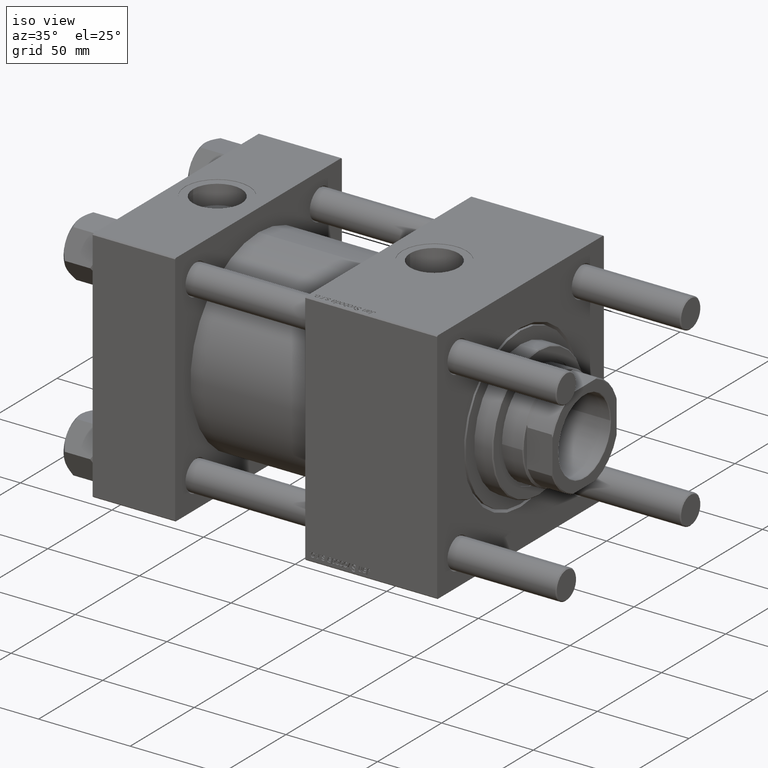
[diagram: clean part render]
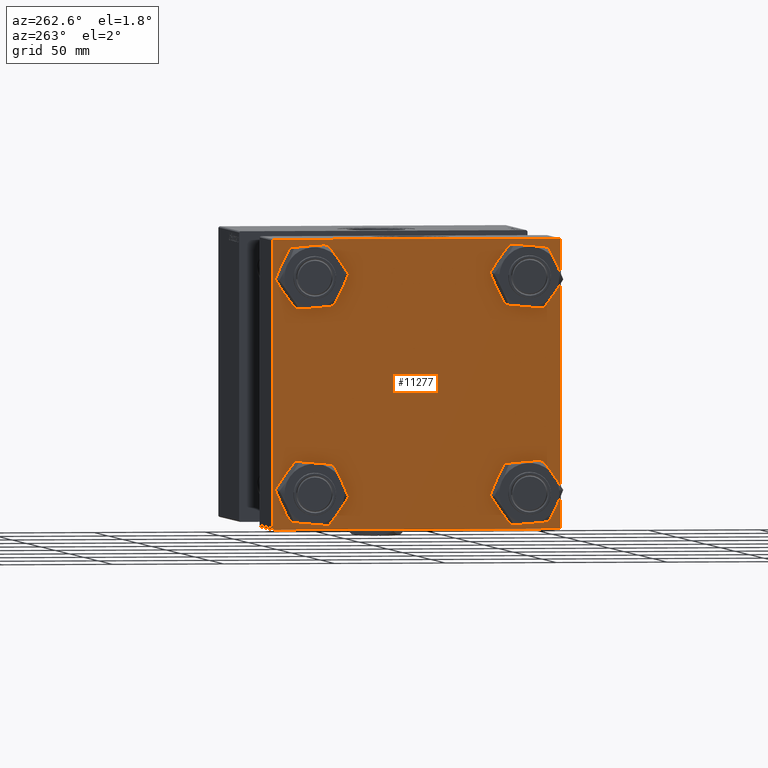
[diagram: tour spotlight — one face highlighted and labeled with its STEP entity id]
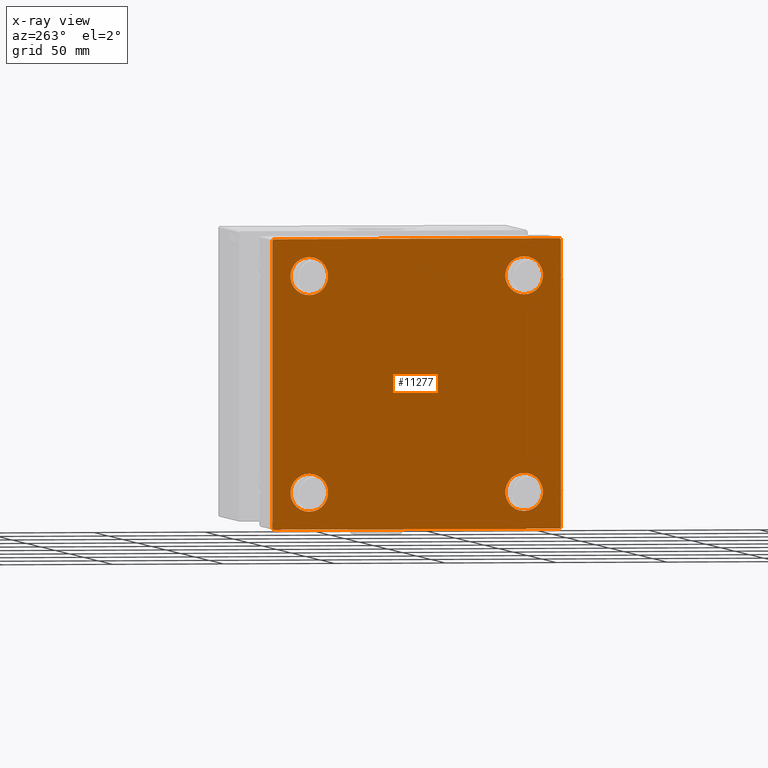
[diagram: x-ray of the same camera — body ghosted, this tour face saturated]
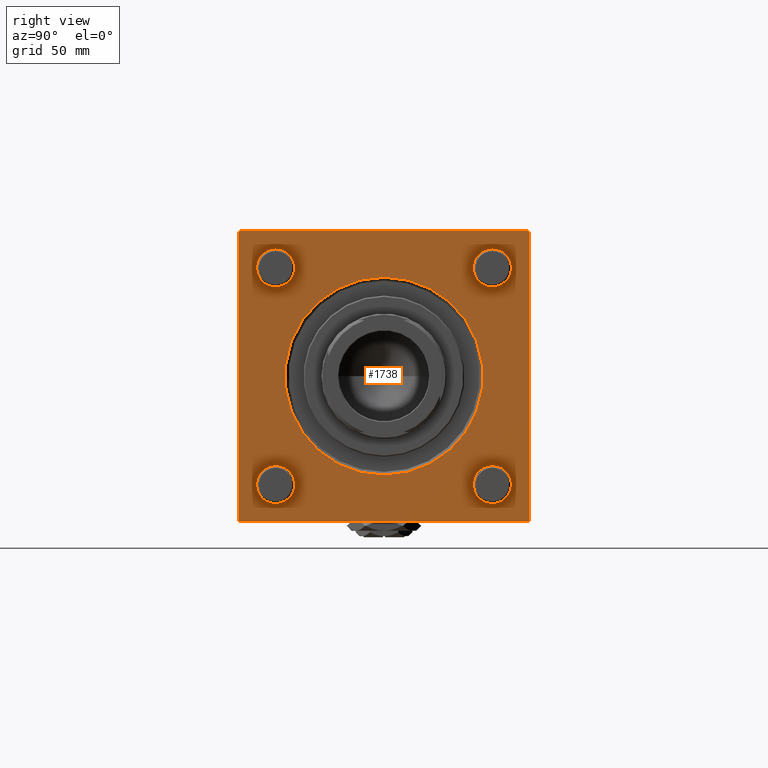
[diagram: tour spotlight — one face highlighted and labeled with its STEP entity id]
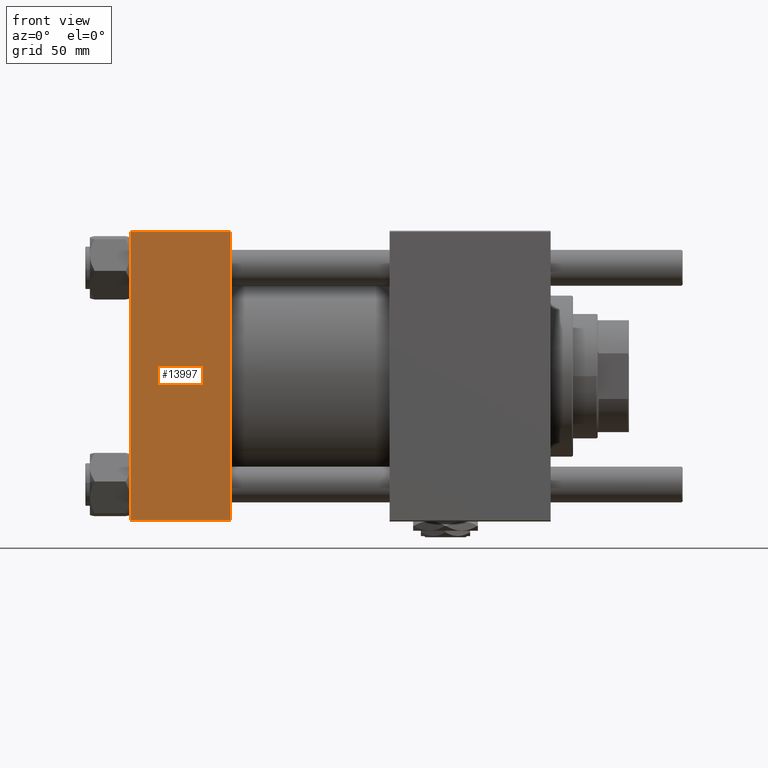
[diagram: tour spotlight — one face highlighted and labeled with its STEP entity id]
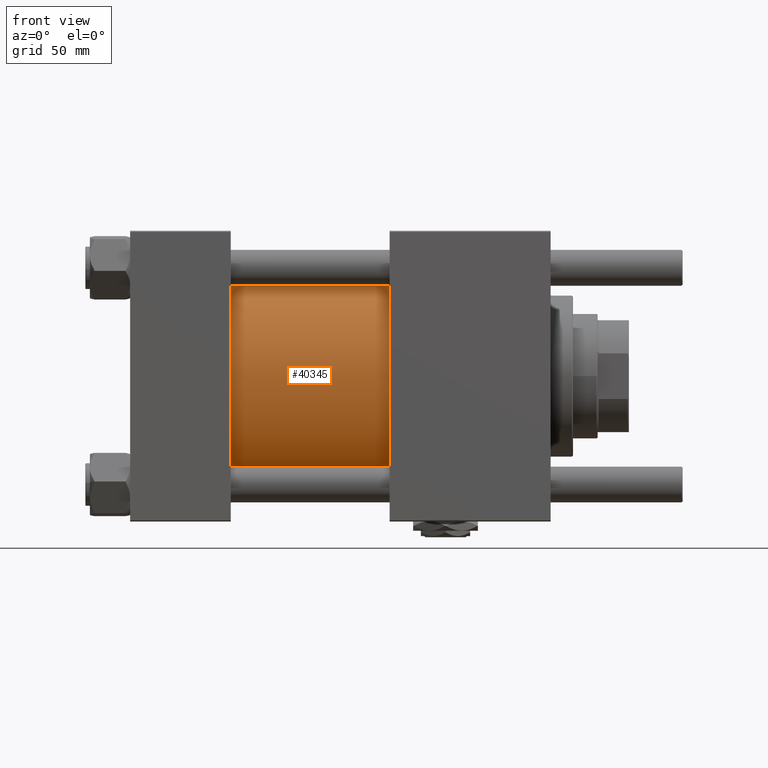
[diagram: tour spotlight — one face highlighted and labeled with its STEP entity id]
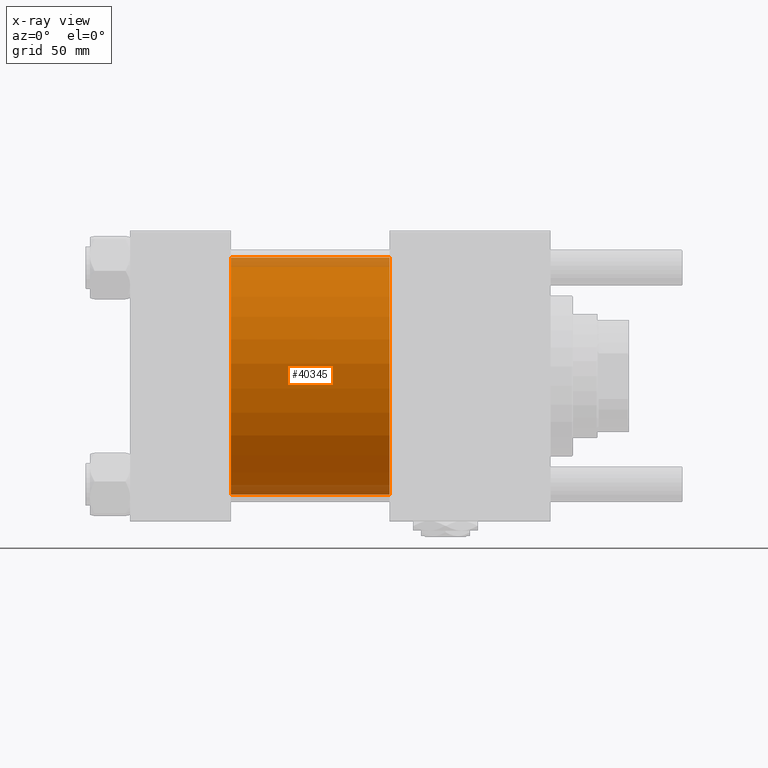
[diagram: x-ray of the same camera — body ghosted, this tour face saturated]
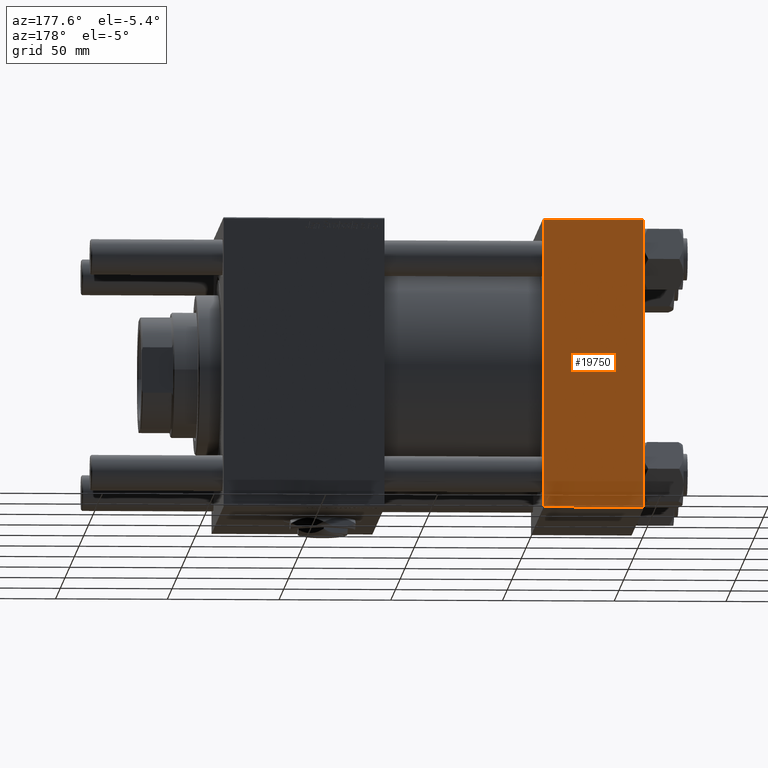
[diagram: tour spotlight — one face highlighted and labeled with its STEP entity id]
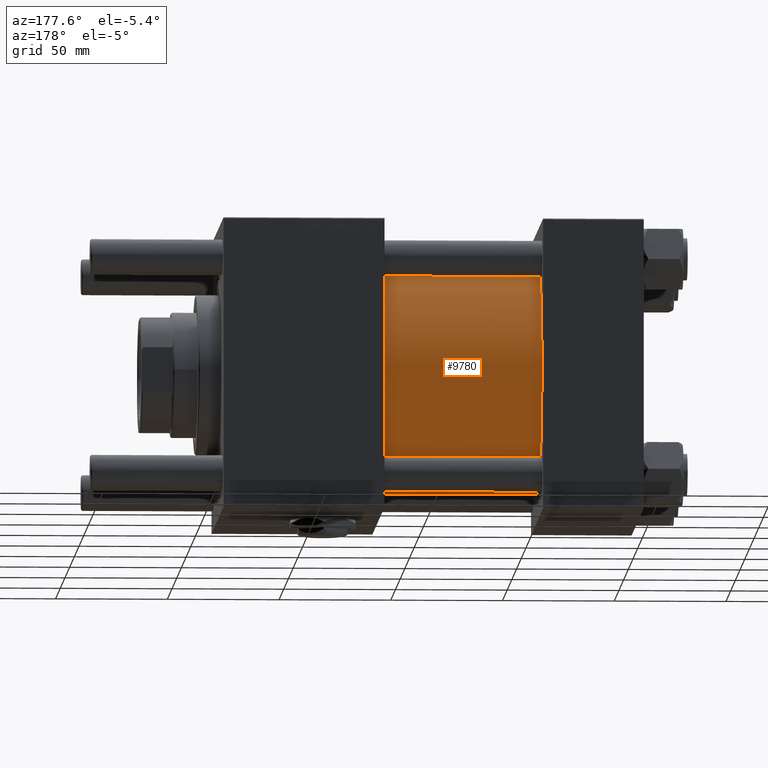
[diagram: tour spotlight — one face highlighted and labeled with its STEP entity id]
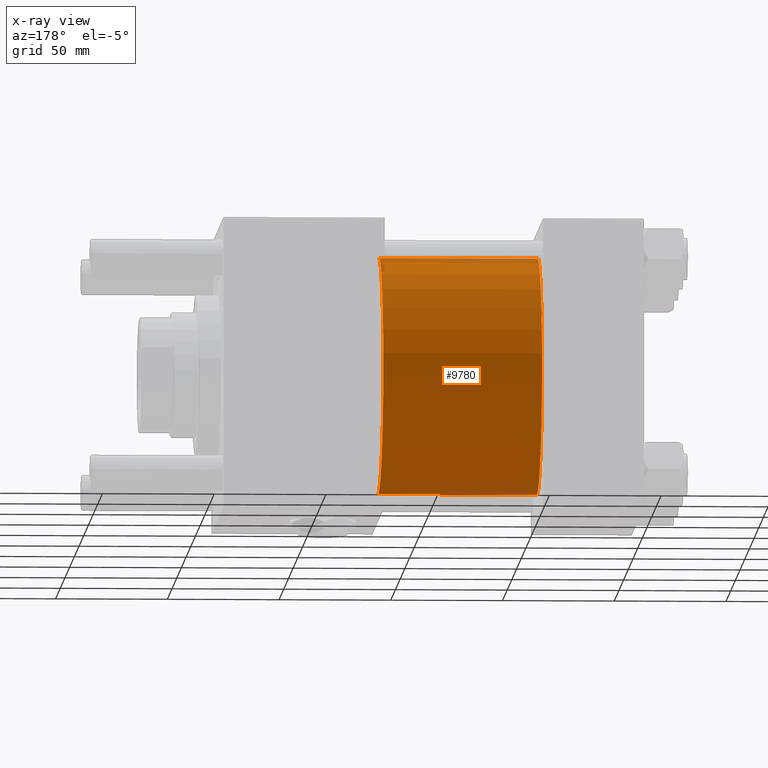
[diagram: x-ray of the same camera — body ghosted, this tour face saturated]
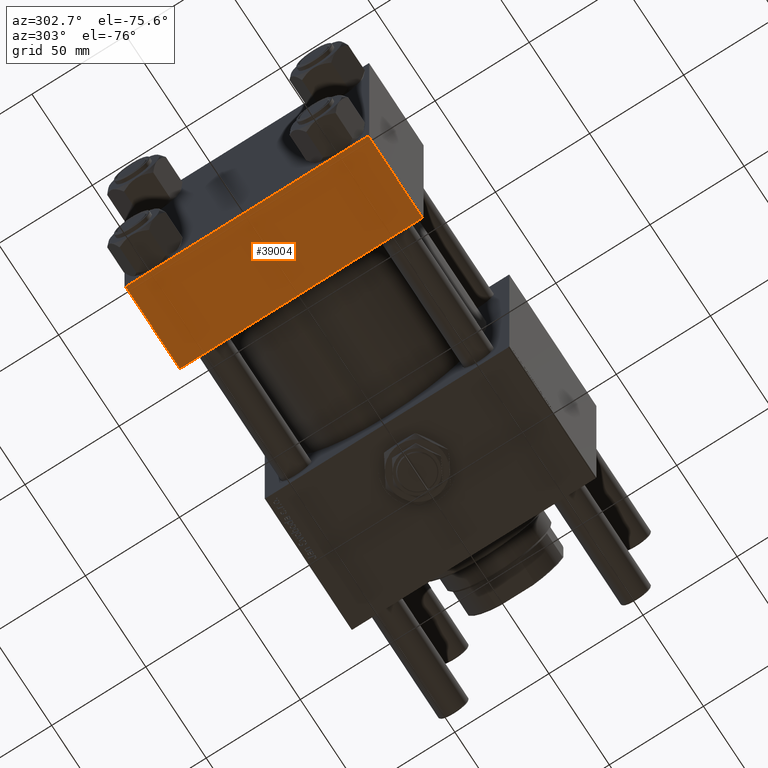
[diagram: tour spotlight — one face highlighted and labeled with its STEP entity id]
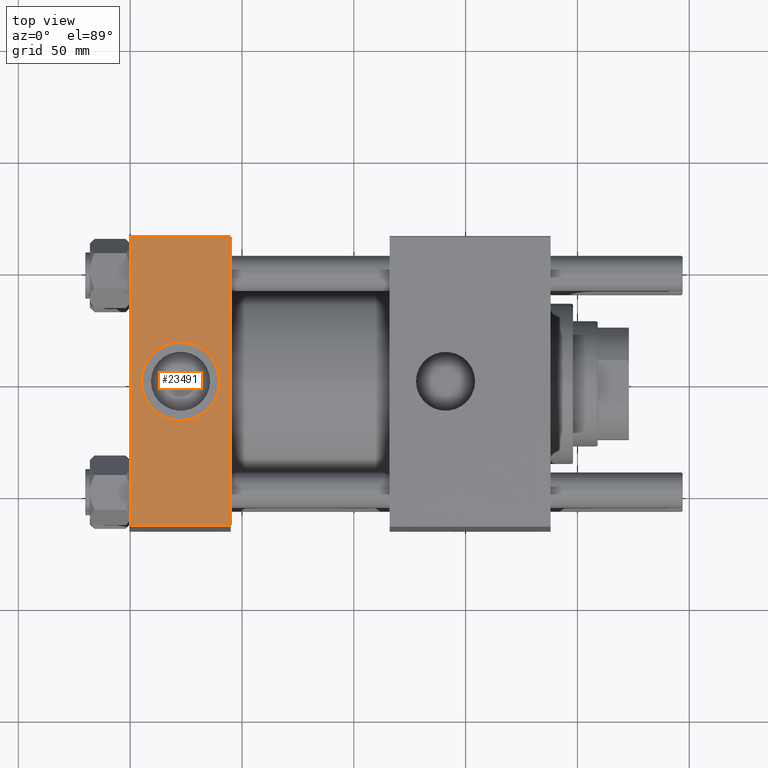
[diagram: tour spotlight — one face highlighted and labeled with its STEP entity id]
A machine part: a face-by-face anatomy tour. The part has 1253 B-rep faces; the first image is the clean iso view, then the 8 largest visible faces are spotlighted one at a time (largest first), each with its STEP entity span.

Face 1 — auxiliary view, entity #11277. An x-ray twin of the same camera follows (body ghosted, this face saturated) — the face is partly hidden behind the body. In plain terms, the highlighted planar face has unit normal (-1, 0, 0).
Definition (entity closure, byte-faithful):
#258 = VERTEX_POINT ( 'NONE', #40661 ) ;
#578 = ORIENTED_EDGE ( 'NONE', *, *, #11005, .T. ) ;
#845 = ORIENTED_EDGE ( 'NONE', *, *, #52996, .F. ) ;
#1016 = VERTEX_POINT ( 'NONE', #8082 ) ;
#1279 = LINE ( 'NONE', #41822, #50370 ) ;
#1327 = EDGE_LOOP ( 'NONE', ( #48896, #3605, #578, #54545, #18184, #44400, #845, #40763 ) ) ;
#1497 = DIRECTION ( 'NONE',  ( 1.000000000000000000, -0.000000000000000000, 0.000000000000000000 ) ) ;
#1869 = CARTESIAN_POINT ( 'NONE',  ( 0.000000000000000000, -48.44999999999999574, -48.45000000000003126 ) ) ;
#2146 = EDGE_LOOP ( 'NONE', ( #10409, #26181 ) ) ;
#2192 = EDGE_CURVE ( 'NONE', #13509, #55642, #58301, .T. ) ;
#2358 = VECTOR ( 'NONE', #39651, 1000.000000000000000 ) ;
#2867 = FACE_BOUND ( 'NONE', #8102, .T. ) ;
#2958 = CARTESIAN_POINT ( 'NONE',  ( 0.000000000000000000, -48.44999999999999574, 48.45000000000003126 ) ) ;
#3605 = ORIENTED_EDGE ( 'NONE', *, *, #46556, .T. ) ;
#4401 = ORIENTED_EDGE ( 'NONE', *, *, #4444, .T. ) ;
#4444 = EDGE_CURVE ( 'NONE', #7871, #34806, #29815, .T. ) ;
#4512 = CIRCLE ( 'NONE', #37796, 8.500000000000007105 ) ;
#4629 = CIRCLE ( 'NONE', #37927, 8.500000000000007105 ) ;
#4896 = CARTESIAN_POINT ( 'NONE',  ( 0.000000000000000000, 48.45000000000000995, -39.95000000000000284 ) ) ;
#5135 = DIRECTION ( 'NONE',  ( 0.000000000000000000, 0.000000000000000000, -1.000000000000000000 ) ) ;
#5837 = LINE ( 'NONE', #24018, #47184 ) ;
#6037 = CARTESIAN_POINT ( 'NONE',  ( 0.000000000000000000, -64.49999999999997158, 65.00000000000000000 ) ) ;
#6269 = DIRECTION ( 'NONE',  ( 0.000000000000000000, 0.000000000000000000, 1.000000000000000000 ) ) ;
#6754 = FACE_BOUND ( 'NONE', #51680, .T. ) ;
#6774 = CIRCLE ( 'NONE', #40096, 8.500000000000007105 ) ;
#6880 = AXIS2_PLACEMENT_3D ( 'NONE', #2958, #56638, #29796 ) ;
#7192 = VECTOR ( 'NONE', #5135, 1000.000000000000000 ) ;
#7866 = VERTEX_POINT ( 'NONE', #8653 ) ;
#7871 = VERTEX_POINT ( 'NONE', #58751 ) ;
#8082 = CARTESIAN_POINT ( 'NONE',  ( 0.000000000000000000, -64.49999999999994316, -65.00000000000000000 ) ) ;
#8102 = EDGE_LOOP ( 'NONE', ( #52425, #29509 ) ) ;
#8118 = CARTESIAN_POINT ( 'NONE',  ( 0.000000000000000000, 65.00000000000000000, -64.49999999999995737 ) ) ;
#8653 = CARTESIAN_POINT ( 'NONE',  ( 0.000000000000000000, 48.45000000000000995, -56.95000000000002416 ) ) ;
#9387 = DIRECTION ( 'NONE',  ( -0.000000000000000000, -0.7071067811865474617, -0.7071067811865474617 ) ) ;
#9545 = CARTESIAN_POINT ( 'NONE',  ( 0.000000000000000000, 65.00000000000000000, 64.49999999999998579 ) ) ;
#9582 = VECTOR ( 'NONE', #42859, 1000.000000000000000 ) ;
#9617 = CARTESIAN_POINT ( 'NONE',  ( 0.000000000000000000, 65.00000000000000000, 65.00000000000001421 ) ) ;
#10409 = ORIENTED_EDGE ( 'NONE', *, *, #2192, .T. ) ;
#10676 = CARTESIAN_POINT ( 'NONE',  ( 0.000000000000000000, -65.00000000000000000, 65.00000000000000000 ) ) ;
#11005 = EDGE_CURVE ( 'NONE', #56979, #1016, #21240, .T. ) ;
#11277 = ADVANCED_FACE ( 'NONE', ( #43711, #6754, #57741, #2867, #20760 ), #53247, .T. ) ;
#11336 = VERTEX_POINT ( 'NONE', #48181 ) ;
#11527 = DIRECTION ( 'NONE',  ( -1.000000000000000000, 0.000000000000000000, -0.000000000000000000 ) ) ;
#11677 = CARTESIAN_POINT ( 'NONE',  ( 0.000000000000000000, 48.45000000000000995, -48.45000000000001705 ) ) ;
#12217 = DIRECTION ( 'NONE',  ( 0.000000000000000000, 0.000000000000000000, 1.000000000000000000 ) ) ;
#12242 = LINE ( 'NONE', #53074, #2358 ) ;
#12503 = ORIENTED_EDGE ( 'NONE', *, *, #17970, .T. ) ;
#13005 = CARTESIAN_POINT ( 'NONE',  ( 0.000000000000000000, 48.45000000000000995, -48.45000000000001705 ) ) ;
#13449 = CARTESIAN_POINT ( 'NONE',  ( 0.000000000000000000, -48.44999999999999574, 56.95000000000003837 ) ) ;
#13509 = VERTEX_POINT ( 'NONE', #13449 ) ;
#14400 = DIRECTION ( 'NONE',  ( 1.000000000000000000, -0.000000000000000000, 0.000000000000000000 ) ) ;
#14857 = AXIS2_PLACEMENT_3D ( 'NONE', #13005, #26994, #31463 ) ;
#15798 = LINE ( 'NONE', #24450, #32834 ) ;
#16774 = DIRECTION ( 'NONE',  ( 0.000000000000000000, -1.000000000000000000, -1.067522139062650425E-16 ) ) ;
#17970 = EDGE_CURVE ( 'NONE', #57527, #7866, #49170, .T. ) ;
#18184 = ORIENTED_EDGE ( 'NONE', *, *, #23657, .F. ) ;
#19162 = DIRECTION ( 'NONE',  ( 0.000000000000000000, -1.000000000000000000, -1.067522139062650425E-16 ) ) ;
#20760 = FACE_OUTER_BOUND ( 'NONE', #1327, .T. ) ;
#21240 = LINE ( 'NONE', #39410, #28137 ) ;
#22326 = CARTESIAN_POINT ( 'NONE',  ( 0.000000000000000000, -48.44999999999999574, 48.45000000000003126 ) ) ;
#23246 = ORIENTED_EDGE ( 'NONE', *, *, #58005, .T. ) ;
#23657 = EDGE_CURVE ( 'NONE', #51339, #39627, #38370, .T. ) ;
#24018 = CARTESIAN_POINT ( 'NONE',  ( 0.000000000000000000, -64.75000000000176215, -64.74999999999816680 ) ) ;
#24450 = CARTESIAN_POINT ( 'NONE',  ( 0.000000000000000000, 64.74999999999998579, 64.74999999999998579 ) ) ;
#26027 = AXIS2_PLACEMENT_3D ( 'NONE', #1869, #14400, #42107 ) ;
#26124 = EDGE_CURVE ( 'NONE', #11336, #48491, #6774, .T. ) ;
#26181 = ORIENTED_EDGE ( 'NONE', *, *, #48172, .T. ) ;
#26872 = VERTEX_POINT ( 'NONE', #8118 ) ;
#26994 = DIRECTION ( 'NONE',  ( 1.000000000000000000, -0.000000000000000000, 0.000000000000000000 ) ) ;
#28137 = VECTOR ( 'NONE', #16774, 1000.000000000000000 ) ;
#28410 = DIRECTION ( 'NONE',  ( 1.000000000000000000, -0.000000000000000000, 0.000000000000000000 ) ) ;
#29509 = ORIENTED_EDGE ( 'NONE', *, *, #52101, .T. ) ;
#29758 = CARTESIAN_POINT ( 'NONE',  ( 0.000000000000000000, -65.00000000000000000, -64.49999999999991473 ) ) ;
#29796 = DIRECTION ( 'NONE',  ( 0.000000000000000000, 0.000000000000000000, 1.000000000000000000 ) ) ;
#29815 = CIRCLE ( 'NONE', #26027, 8.500000000000007105 ) ;
#31463 = DIRECTION ( 'NONE',  ( 0.000000000000000000, 0.000000000000000000, 1.000000000000000000 ) ) ;
#31523 = DIRECTION ( 'NONE',  ( 1.000000000000000000, -0.000000000000000000, 0.000000000000000000 ) ) ;
#32834 = VECTOR ( 'NONE', #51856, 1000.000000000000114 ) ;
#33006 = AXIS2_PLACEMENT_3D ( 'NONE', #11677, #56998, #57288 ) ;
#33670 = CARTESIAN_POINT ( 'NONE',  ( 0.000000000000000000, 48.45000000000000995, 48.45000000000001705 ) ) ;
#34759 = CARTESIAN_POINT ( 'NONE',  ( 0.000000000000000000, 0.000000000000000000, 0.000000000000000000 ) ) ;
#34806 = VERTEX_POINT ( 'NONE', #51747 ) ;
#35526 = EDGE_LOOP ( 'NONE', ( #12503, #54134 ) ) ;
#36916 = EDGE_CURVE ( 'NONE', #258, #51135, #15798, .T. ) ;
#37796 = AXIS2_PLACEMENT_3D ( 'NONE', #22326, #53930, #12217 ) ;
#37826 = CARTESIAN_POINT ( 'NONE',  ( 0.000000000000000000, -65.00000000000000000, 64.50000000000000000 ) ) ;
#37927 = AXIS2_PLACEMENT_3D ( 'NONE', #33670, #1497, #6269 ) ;
#38307 = DIRECTION ( 'NONE',  ( 0.000000000000000000, -0.7071067811865279218, 0.7071067811865671127 ) ) ;
#38370 = LINE ( 'NONE', #10676, #9582 ) ;
#38607 = CIRCLE ( 'NONE', #55769, 8.500000000000007105 ) ;
#39043 = EDGE_CURVE ( 'NONE', #1016, #39627, #5837, .T. ) ;
#39283 = CARTESIAN_POINT ( 'NONE',  ( 0.000000000000000000, 64.49999999999997158, -64.99999999999998579 ) ) ;
#39410 = CARTESIAN_POINT ( 'NONE',  ( 0.000000000000000000, 65.00000000000000000, -64.99999999999998579 ) ) ;
#39627 = VERTEX_POINT ( 'NONE', #29758 ) ;
#39651 = DIRECTION ( 'NONE',  ( -0.000000000000000000, 0.7071067811865672237, 0.7071067811865279218 ) ) ;
#40096 = AXIS2_PLACEMENT_3D ( 'NONE', #41818, #28410, #50186 ) ;
#40186 = DIRECTION ( 'NONE',  ( 0.000000000000000000, 0.000000000000000000, 1.000000000000000000 ) ) ;
#40661 = CARTESIAN_POINT ( 'NONE',  ( 0.000000000000000000, 64.49999999999997158, 65.00000000000001421 ) ) ;
#40763 = ORIENTED_EDGE ( 'NONE', *, *, #36916, .T. ) ;
#40769 = CARTESIAN_POINT ( 'NONE',  ( 0.000000000000000000, -48.44999999999999574, -48.45000000000003126 ) ) ;
#41567 = LINE ( 'NONE', #51102, #41605 ) ;
#41605 = VECTOR ( 'NONE', #9387, 1000.000000000000114 ) ;
#41818 = CARTESIAN_POINT ( 'NONE',  ( 0.000000000000000000, 48.45000000000000995, 48.45000000000001705 ) ) ;
#41822 = CARTESIAN_POINT ( 'NONE',  ( 0.000000000000000000, 65.00000000000000000, 65.00000000000001421 ) ) ;
#42107 = DIRECTION ( 'NONE',  ( 0.000000000000000000, 0.000000000000000000, 1.000000000000000000 ) ) ;
#42379 = EDGE_CURVE ( 'NONE', #51135, #26872, #50171, .T. ) ;
#42859 = DIRECTION ( 'NONE',  ( 0.000000000000000000, 0.000000000000000000, -1.000000000000000000 ) ) ;
#43541 = CIRCLE ( 'NONE', #33006, 8.500000000000007105 ) ;
#43711 = FACE_BOUND ( 'NONE', #2146, .T. ) ;
#44400 = ORIENTED_EDGE ( 'NONE', *, *, #55574, .T. ) ;
#44415 = CARTESIAN_POINT ( 'NONE',  ( 0.000000000000000000, -48.44999999999999574, 39.95000000000001705 ) ) ;
#45246 = AXIS2_PLACEMENT_3D ( 'NONE', #34759, #11527, #52958 ) ;
#46556 = EDGE_CURVE ( 'NONE', #26872, #56979, #41567, .T. ) ;
#46913 = EDGE_CURVE ( 'NONE', #7866, #57527, #43541, .T. ) ;
#47184 = VECTOR ( 'NONE', #38307, 1000.000000000000000 ) ;
#48172 = EDGE_CURVE ( 'NONE', #55642, #13509, #4512, .T. ) ;
#48181 = CARTESIAN_POINT ( 'NONE',  ( 0.000000000000000000, 48.45000000000000995, 56.95000000000002416 ) ) ;
#48491 = VERTEX_POINT ( 'NONE', #56325 ) ;
#48896 = ORIENTED_EDGE ( 'NONE', *, *, #42379, .T. ) ;
#49170 = CIRCLE ( 'NONE', #14857, 8.500000000000007105 ) ;
#50171 = LINE ( 'NONE', #9617, #7192 ) ;
#50186 = DIRECTION ( 'NONE',  ( 0.000000000000000000, 0.000000000000000000, 1.000000000000000000 ) ) ;
#50275 = VERTEX_POINT ( 'NONE', #6037 ) ;
#50370 = VECTOR ( 'NONE', #19162, 1000.000000000000000 ) ;
#51102 = CARTESIAN_POINT ( 'NONE',  ( 0.000000000000000000, 64.74999999999997158, -64.74999999999997158 ) ) ;
#51135 = VERTEX_POINT ( 'NONE', #9545 ) ;
#51339 = VERTEX_POINT ( 'NONE', #37826 ) ;
#51680 = EDGE_LOOP ( 'NONE', ( #23246, #4401 ) ) ;
#51747 = CARTESIAN_POINT ( 'NONE',  ( 0.000000000000000000, -48.44999999999999574, -39.95000000000001705 ) ) ;
#51856 = DIRECTION ( 'NONE',  ( 0.000000000000000000, 0.7071067811865474617, -0.7071067811865474617 ) ) ;
#52101 = EDGE_CURVE ( 'NONE', #48491, #11336, #4629, .T. ) ;
#52425 = ORIENTED_EDGE ( 'NONE', *, *, #26124, .T. ) ;
#52958 = DIRECTION ( 'NONE',  ( -0.000000000000000000, 0.000000000000000000, 1.000000000000000000 ) ) ;
#52996 = EDGE_CURVE ( 'NONE', #258, #50275, #1279, .T. ) ;
#53074 = CARTESIAN_POINT ( 'NONE',  ( -0.000000000000000000, -64.74999999999819522, 64.75000000000179057 ) ) ;
#53247 = PLANE ( 'NONE',  #45246 ) ;
#53930 = DIRECTION ( 'NONE',  ( 1.000000000000000000, -0.000000000000000000, 0.000000000000000000 ) ) ;
#54134 = ORIENTED_EDGE ( 'NONE', *, *, #46913, .T. ) ;
#54545 = ORIENTED_EDGE ( 'NONE', *, *, #39043, .T. ) ;
#55574 = EDGE_CURVE ( 'NONE', #51339, #50275, #12242, .T. ) ;
#55642 = VERTEX_POINT ( 'NONE', #44415 ) ;
#55769 = AXIS2_PLACEMENT_3D ( 'NONE', #40769, #31523, #40186 ) ;
#56325 = CARTESIAN_POINT ( 'NONE',  ( 0.000000000000000000, 48.45000000000000995, 39.95000000000000284 ) ) ;
#56638 = DIRECTION ( 'NONE',  ( 1.000000000000000000, -0.000000000000000000, 0.000000000000000000 ) ) ;
#56979 = VERTEX_POINT ( 'NONE', #39283 ) ;
#56998 = DIRECTION ( 'NONE',  ( 1.000000000000000000, -0.000000000000000000, 0.000000000000000000 ) ) ;
#57288 = DIRECTION ( 'NONE',  ( 0.000000000000000000, 0.000000000000000000, 1.000000000000000000 ) ) ;
#57527 = VERTEX_POINT ( 'NONE', #4896 ) ;
#57741 = FACE_BOUND ( 'NONE', #35526, .T. ) ;
#58005 = EDGE_CURVE ( 'NONE', #34806, #7871, #38607, .T. ) ;
#58301 = CIRCLE ( 'NONE', #6880, 8.500000000000007105 ) ;
#58751 = CARTESIAN_POINT ( 'NONE',  ( 0.000000000000000000, -48.44999999999999574, -56.95000000000003837 ) ) ;

Face 2 — right view, entity #1738. In plain terms, the highlighted planar face has unit normal (-1, 0, 0).
Definition (entity closure, byte-faithful):
#118 = CARTESIAN_POINT ( 'NONE',  ( 188.0000000000000000, 65.00000000000002842, -64.99999999999998579 ) ) ;
#624 = CARTESIAN_POINT ( 'NONE',  ( 188.0000000000000000, -48.44999999999999574, -48.45000000000003126 ) ) ;
#1057 = DIRECTION ( 'NONE',  ( 0.000000000000000000, 0.000000000000000000, 1.000000000000000000 ) ) ;
#1155 = VERTEX_POINT ( 'NONE', #28311 ) ;
#1738 = ADVANCED_FACE ( 'NONE', ( #53253, #57445, #49066, #44304, #35343, #39839 ), #43717, .F. ) ;
#2873 = CARTESIAN_POINT ( 'NONE',  ( 188.0000000000000000, 0.000000000000000000, 0.000000000000000000 ) ) ;
#3342 = CIRCLE ( 'NONE', #39507, 44.24999999999998579 ) ;
#4269 = AXIS2_PLACEMENT_3D ( 'NONE', #7067, #52982, #7953 ) ;
#4339 = AXIS2_PLACEMENT_3D ( 'NONE', #624, #19086, #33090 ) ;
#4365 = VERTEX_POINT ( 'NONE', #40372 ) ;
#4886 = EDGE_LOOP ( 'NONE', ( #7622, #18972 ) ) ;
#5016 = CARTESIAN_POINT ( 'NONE',  ( 188.0000000000000000, -64.99999999999998579, 64.50000000000008527 ) ) ;
#5035 = EDGE_CURVE ( 'NONE', #39728, #19306, #27821, .T. ) ;
#5269 = VECTOR ( 'NONE', #55177, 1000.000000000000000 ) ;
#5565 = EDGE_CURVE ( 'NONE', #30902, #19306, #39055, .T. ) ;
#5984 = LINE ( 'NONE', #23288, #5269 ) ;
#6525 = CARTESIAN_POINT ( 'NONE',  ( 188.0000000000000000, 65.00000000000002842, 65.00000000000001421 ) ) ;
#6909 = CARTESIAN_POINT ( 'NONE',  ( 188.0000000000000000, -64.99999999999998579, 64.50000000000008527 ) ) ;
#7032 = CARTESIAN_POINT ( 'NONE',  ( 188.0000000000000000, -64.50000000000002842, -65.00000000000001421 ) ) ;
#7041 = CARTESIAN_POINT ( 'NONE',  ( 188.0000000000000000, 65.00000000000002842, 64.50000000000001421 ) ) ;
#7067 = CARTESIAN_POINT ( 'NONE',  ( 188.0000000000000000, 48.45000000000000995, 48.45000000000001705 ) ) ;
#7208 = DIRECTION ( 'NONE',  ( -0.000000000000000000, -0.7071067811865376918, -0.7071067811865574537 ) ) ;
#7622 = ORIENTED_EDGE ( 'NONE', *, *, #22277, .T. ) ;
#7953 = DIRECTION ( 'NONE',  ( 0.000000000000000000, 0.000000000000000000, 1.000000000000000000 ) ) ;
#8031 = EDGE_CURVE ( 'NONE', #17888, #33675, #25004, .T. ) ;
#8514 = CARTESIAN_POINT ( 'NONE',  ( 188.0000000000000000, 5.419062086227035828E-15, 44.24999999999998579 ) ) ;
#9097 = ORIENTED_EDGE ( 'NONE', *, *, #45981, .T. ) ;
#9143 = DIRECTION ( 'NONE',  ( 0.000000000000000000, -1.000000000000000000, -1.067522139062650425E-16 ) ) ;
#9505 = EDGE_CURVE ( 'NONE', #30632, #58771, #49034, .T. ) ;
#10442 = CARTESIAN_POINT ( 'NONE',  ( 188.0000000000000000, 0.000000000000000000, -44.24999999999998579 ) ) ;
#10560 = EDGE_CURVE ( 'NONE', #52075, #19434, #3342, .T. ) ;
#10593 = DIRECTION ( 'NONE',  ( -1.000000000000000000, 0.000000000000000000, -0.000000000000000000 ) ) ;
#11033 = CIRCLE ( 'NONE', #49114, 8.499999999999923617 ) ;
#11090 = EDGE_LOOP ( 'NONE', ( #53521, #56399 ) ) ;
#11651 = CARTESIAN_POINT ( 'NONE',  ( 188.0000000000000000, -64.50000000000002842, -65.00000000000001421 ) ) ;
#12179 = VERTEX_POINT ( 'NONE', #43939 ) ;
#12246 = DIRECTION ( 'NONE',  ( 0.000000000000000000, 0.7071067811865279218, -0.7071067811865672237 ) ) ;
#13478 = CARTESIAN_POINT ( 'NONE',  ( 188.0000000000000000, 64.50000000000005684, 65.00000000000001421 ) ) ;
#13606 = CARTESIAN_POINT ( 'NONE',  ( 188.0000000000000000, 65.00000000000002842, 65.00000000000001421 ) ) ;
#13761 = DIRECTION ( 'NONE',  ( 0.000000000000000000, 0.000000000000000000, 1.000000000000000000 ) ) ;
#14546 = DIRECTION ( 'NONE',  ( -1.000000000000000000, 0.000000000000000000, -0.000000000000000000 ) ) ;
#14803 = VECTOR ( 'NONE', #9143, 1000.000000000000000 ) ;
#15171 = CIRCLE ( 'NONE', #48497, 8.499999999999923617 ) ;
#15405 = AXIS2_PLACEMENT_3D ( 'NONE', #37175, #14546, #38069 ) ;
#15863 = LINE ( 'NONE', #6909, #41397 ) ;
#16464 = DIRECTION ( 'NONE',  ( -1.000000000000000000, 0.000000000000000000, -0.000000000000000000 ) ) ;
#16542 = CARTESIAN_POINT ( 'NONE',  ( 188.0000000000000000, 64.50000000000002842, -64.99999999999998579 ) ) ;
#16785 = EDGE_LOOP ( 'NONE', ( #44191, #42636 ) ) ;
#17121 = ORIENTED_EDGE ( 'NONE', *, *, #10560, .T. ) ;
#17888 = VERTEX_POINT ( 'NONE', #7041 ) ;
#18044 = DIRECTION ( 'NONE',  ( -1.000000000000000000, 0.000000000000000000, -0.000000000000000000 ) ) ;
#18234 = CARTESIAN_POINT ( 'NONE',  ( 188.0000000000000000, 48.45000000000000995, -56.94999999999993889 ) ) ;
#18534 = DIRECTION ( 'NONE',  ( 0.000000000000000000, -0.7071067811865279218, 0.7071067811865671127 ) ) ;
#18972 = ORIENTED_EDGE ( 'NONE', *, *, #24220, .T. ) ;
#19086 = DIRECTION ( 'NONE',  ( -1.000000000000000000, 0.000000000000000000, -0.000000000000000000 ) ) ;
#19306 = VERTEX_POINT ( 'NONE', #7032 ) ;
#19410 = LINE ( 'NONE', #13478, #20678 ) ;
#19434 = VERTEX_POINT ( 'NONE', #8514 ) ;
#19487 = EDGE_CURVE ( 'NONE', #19434, #52075, #37881, .T. ) ;
#20621 = EDGE_LOOP ( 'NONE', ( #51037, #47525 ) ) ;
#20678 = VECTOR ( 'NONE', #18534, 1000.000000000000000 ) ;
#21846 = ORIENTED_EDGE ( 'NONE', *, *, #5565, .T. ) ;
#21920 = DIRECTION ( 'NONE',  ( 0.000000000000000000, 0.000000000000000000, 1.000000000000000000 ) ) ;
#22277 = EDGE_CURVE ( 'NONE', #1155, #39521, #56308, .T. ) ;
#22378 = CARTESIAN_POINT ( 'NONE',  ( 188.0000000000000000, -64.99999999999998579, -64.50000000000002842 ) ) ;
#22754 = EDGE_CURVE ( 'NONE', #38264, #28722, #43975, .T. ) ;
#23288 = CARTESIAN_POINT ( 'NONE',  ( 188.0000000000000000, 65.00000000000002842, -64.50000000000001421 ) ) ;
#23317 = CARTESIAN_POINT ( 'NONE',  ( 188.0000000000000000, 48.45000000000000995, 39.95000000000008811 ) ) ;
#23617 = DIRECTION ( 'NONE',  ( -1.000000000000000000, 0.000000000000000000, -0.000000000000000000 ) ) ;
#23623 = CARTESIAN_POINT ( 'NONE',  ( 188.0000000000000000, -48.44999999999999574, -48.45000000000003126 ) ) ;
#24220 = EDGE_CURVE ( 'NONE', #39521, #1155, #49582, .T. ) ;
#24311 = CARTESIAN_POINT ( 'NONE',  ( 188.0000000000000000, 48.45000000000000995, 56.94999999999993889 ) ) ;
#24508 = CARTESIAN_POINT ( 'NONE',  ( 188.0000000000000000, -48.44999999999999574, 48.45000000000003126 ) ) ;
#25004 = LINE ( 'NONE', #6525, #27043 ) ;
#26127 = DIRECTION ( 'NONE',  ( -1.000000000000000000, 0.000000000000000000, -0.000000000000000000 ) ) ;
#27043 = VECTOR ( 'NONE', #56302, 1000.000000000000000 ) ;
#27266 = EDGE_CURVE ( 'NONE', #44100, #30902, #42567, .T. ) ;
#27281 = CARTESIAN_POINT ( 'NONE',  ( 188.0000000000000000, 0.000000000000000000, 0.000000000000000000 ) ) ;
#27821 = LINE ( 'NONE', #118, #30786 ) ;
#28311 = CARTESIAN_POINT ( 'NONE',  ( 188.0000000000000000, -48.44999999999999574, 39.95000000000010232 ) ) ;
#28722 = VERTEX_POINT ( 'NONE', #34961 ) ;
#29558 = ORIENTED_EDGE ( 'NONE', *, *, #37942, .T. ) ;
#30220 = ORIENTED_EDGE ( 'NONE', *, *, #5035, .F. ) ;
#30468 = DIRECTION ( 'NONE',  ( 0.000000000000000000, 0.000000000000000000, 1.000000000000000000 ) ) ;
#30632 = VERTEX_POINT ( 'NONE', #23317 ) ;
#30645 = CARTESIAN_POINT ( 'NONE',  ( 188.0000000000000000, 65.00000000000002842, -64.50000000000001421 ) ) ;
#30786 = VECTOR ( 'NONE', #58579, 1000.000000000000000 ) ;
#30902 = VERTEX_POINT ( 'NONE', #22378 ) ;
#31582 = AXIS2_PLACEMENT_3D ( 'NONE', #39109, #16464, #30468 ) ;
#32559 = EDGE_LOOP ( 'NONE', ( #58053, #21846, #30220, #36469, #54456, #9097, #29558, #47944 ) ) ;
#33026 = CARTESIAN_POINT ( 'NONE',  ( 188.0000000000000000, -64.99999999999998579, 65.00000000000000000 ) ) ;
#33090 = DIRECTION ( 'NONE',  ( 0.000000000000000000, 0.000000000000000000, 1.000000000000000000 ) ) ;
#33238 = CARTESIAN_POINT ( 'NONE',  ( 188.0000000000000000, 0.000000000000000000, 0.000000000000000000 ) ) ;
#33473 = VECTOR ( 'NONE', #47913, 1000.000000000000000 ) ;
#33675 = VERTEX_POINT ( 'NONE', #30645 ) ;
#34766 = DIRECTION ( 'NONE',  ( -0.000000000000000000, 0.000000000000000000, 1.000000000000000000 ) ) ;
#34961 = CARTESIAN_POINT ( 'NONE',  ( 188.0000000000000000, 48.45000000000000995, -39.95000000000008811 ) ) ;
#35200 = CARTESIAN_POINT ( 'NONE',  ( 188.0000000000000000, 64.50000000000005684, 65.00000000000001421 ) ) ;
#35343 = FACE_BOUND ( 'NONE', #52341, .T. ) ;
#36067 = EDGE_CURVE ( 'NONE', #4365, #44100, #15863, .T. ) ;
#36469 = ORIENTED_EDGE ( 'NONE', *, *, #38331, .T. ) ;
#36775 = AXIS2_PLACEMENT_3D ( 'NONE', #54595, #41469, #13761 ) ;
#37108 = LINE ( 'NONE', #13606, #14803 ) ;
#37175 = CARTESIAN_POINT ( 'NONE',  ( 188.0000000000000000, 48.45000000000000995, -48.45000000000001705 ) ) ;
#37881 = CIRCLE ( 'NONE', #41689, 44.24999999999998579 ) ;
#37942 = EDGE_CURVE ( 'NONE', #41505, #4365, #37108, .T. ) ;
#38069 = DIRECTION ( 'NONE',  ( 0.000000000000000000, 0.000000000000000000, 1.000000000000000000 ) ) ;
#38190 = DIRECTION ( 'NONE',  ( 0.000000000000000000, 0.000000000000000000, 1.000000000000000000 ) ) ;
#38264 = VERTEX_POINT ( 'NONE', #18234 ) ;
#38331 = EDGE_CURVE ( 'NONE', #39728, #33675, #5984, .T. ) ;
#39055 = LINE ( 'NONE', #11651, #43210 ) ;
#39109 = CARTESIAN_POINT ( 'NONE',  ( 188.0000000000000000, -48.44999999999999574, 48.45000000000003126 ) ) ;
#39160 = EDGE_CURVE ( 'NONE', #58771, #30632, #11033, .T. ) ;
#39507 = AXIS2_PLACEMENT_3D ( 'NONE', #33238, #10593, #1057 ) ;
#39521 = VERTEX_POINT ( 'NONE', #46743 ) ;
#39728 = VERTEX_POINT ( 'NONE', #16542 ) ;
#39839 = FACE_OUTER_BOUND ( 'NONE', #32559, .T. ) ;
#40372 = CARTESIAN_POINT ( 'NONE',  ( 188.0000000000000000, -64.50000000000008527, 65.00000000000000000 ) ) ;
#40687 = CARTESIAN_POINT ( 'NONE',  ( 188.0000000000000000, -48.44999999999999574, -56.94999999999995310 ) ) ;
#41397 = VECTOR ( 'NONE', #7208, 999.9999999999998863 ) ;
#41469 = DIRECTION ( 'NONE',  ( -1.000000000000000000, 0.000000000000000000, -0.000000000000000000 ) ) ;
#41505 = VERTEX_POINT ( 'NONE', #35200 ) ;
#41689 = AXIS2_PLACEMENT_3D ( 'NONE', #27281, #18044, #54398 ) ;
#42567 = LINE ( 'NONE', #33026, #33473 ) ;
#42636 = ORIENTED_EDGE ( 'NONE', *, *, #39160, .T. ) ;
#42682 = DIRECTION ( 'NONE',  ( 0.000000000000000000, 0.000000000000000000, 1.000000000000000000 ) ) ;
#42685 = ORIENTED_EDGE ( 'NONE', *, *, #19487, .T. ) ;
#42979 = EDGE_CURVE ( 'NONE', #12179, #45531, #43365, .T. ) ;
#43210 = VECTOR ( 'NONE', #12246, 1000.000000000000000 ) ;
#43365 = CIRCLE ( 'NONE', #4339, 8.499999999999923617 ) ;
#43717 = PLANE ( 'NONE',  #52577 ) ;
#43939 = CARTESIAN_POINT ( 'NONE',  ( 188.0000000000000000, -48.44999999999999574, -39.95000000000010232 ) ) ;
#43975 = CIRCLE ( 'NONE', #15405, 8.499999999999923617 ) ;
#44100 = VERTEX_POINT ( 'NONE', #5016 ) ;
#44191 = ORIENTED_EDGE ( 'NONE', *, *, #9505, .T. ) ;
#44304 = FACE_BOUND ( 'NONE', #4886, .T. ) ;
#45026 = EDGE_CURVE ( 'NONE', #28722, #38264, #46322, .T. ) ;
#45531 = VERTEX_POINT ( 'NONE', #40687 ) ;
#45981 = EDGE_CURVE ( 'NONE', #17888, #41505, #19410, .T. ) ;
#46322 = CIRCLE ( 'NONE', #36775, 8.499999999999923617 ) ;
#46743 = CARTESIAN_POINT ( 'NONE',  ( 188.0000000000000000, -48.44999999999999574, 56.94999999999995310 ) ) ;
#47525 = ORIENTED_EDGE ( 'NONE', *, *, #42979, .T. ) ;
#47913 = DIRECTION ( 'NONE',  ( 0.000000000000000000, 0.000000000000000000, -1.000000000000000000 ) ) ;
#47944 = ORIENTED_EDGE ( 'NONE', *, *, #36067, .T. ) ;
#48497 = AXIS2_PLACEMENT_3D ( 'NONE', #23623, #55814, #38190 ) ;
#49034 = CIRCLE ( 'NONE', #4269, 8.499999999999923617 ) ;
#49066 = FACE_BOUND ( 'NONE', #16785, .T. ) ;
#49114 = AXIS2_PLACEMENT_3D ( 'NONE', #57412, #52935, #21920 ) ;
#49582 = CIRCLE ( 'NONE', #50510, 8.499999999999923617 ) ;
#50510 = AXIS2_PLACEMENT_3D ( 'NONE', #24508, #23617, #42682 ) ;
#51037 = ORIENTED_EDGE ( 'NONE', *, *, #53651, .T. ) ;
#52075 = VERTEX_POINT ( 'NONE', #10442 ) ;
#52341 = EDGE_LOOP ( 'NONE', ( #17121, #42685 ) ) ;
#52577 = AXIS2_PLACEMENT_3D ( 'NONE', #2873, #26127, #34766 ) ;
#52935 = DIRECTION ( 'NONE',  ( -1.000000000000000000, 0.000000000000000000, -0.000000000000000000 ) ) ;
#52982 = DIRECTION ( 'NONE',  ( -1.000000000000000000, 0.000000000000000000, -0.000000000000000000 ) ) ;
#53253 = FACE_BOUND ( 'NONE', #20621, .T. ) ;
#53521 = ORIENTED_EDGE ( 'NONE', *, *, #22754, .T. ) ;
#53651 = EDGE_CURVE ( 'NONE', #45531, #12179, #15171, .T. ) ;
#54398 = DIRECTION ( 'NONE',  ( 0.000000000000000000, 0.000000000000000000, 1.000000000000000000 ) ) ;
#54456 = ORIENTED_EDGE ( 'NONE', *, *, #8031, .F. ) ;
#54595 = CARTESIAN_POINT ( 'NONE',  ( 188.0000000000000000, 48.45000000000000995, -48.45000000000001705 ) ) ;
#55177 = DIRECTION ( 'NONE',  ( -0.000000000000000000, 0.7071067811865671127, 0.7071067811865279218 ) ) ;
#55814 = DIRECTION ( 'NONE',  ( -1.000000000000000000, 0.000000000000000000, -0.000000000000000000 ) ) ;
#56302 = DIRECTION ( 'NONE',  ( 0.000000000000000000, 0.000000000000000000, -1.000000000000000000 ) ) ;
#56308 = CIRCLE ( 'NONE', #31582, 8.499999999999923617 ) ;
#56399 = ORIENTED_EDGE ( 'NONE', *, *, #45026, .T. ) ;
#57412 = CARTESIAN_POINT ( 'NONE',  ( 188.0000000000000000, 48.45000000000000995, 48.45000000000001705 ) ) ;
#57445 = FACE_BOUND ( 'NONE', #11090, .T. ) ;
#58053 = ORIENTED_EDGE ( 'NONE', *, *, #27266, .T. ) ;
#58579 = DIRECTION ( 'NONE',  ( 0.000000000000000000, -1.000000000000000000, -2.135044278125300850E-16 ) ) ;
#58771 = VERTEX_POINT ( 'NONE', #24311 ) ;

Face 3 — front view, entity #13997. In plain terms, the highlighted planar face has unit normal (0, 1, 0).
Definition (entity closure, byte-faithful):
#2466 = VECTOR ( 'NONE', #44922, 1000.000000000000000 ) ;
#2927 = DIRECTION ( 'NONE',  ( 0.000000000000000000, -0.000000000000000000, 1.000000000000000000 ) ) ;
#4223 = CARTESIAN_POINT ( 'NONE',  ( 45.00000000000000000, -65.00000000000000000, 64.50000000000000000 ) ) ;
#7111 = AXIS2_PLACEMENT_3D ( 'NONE', #38390, #11587, #2927 ) ;
#9582 = VECTOR ( 'NONE', #42859, 1000.000000000000000 ) ;
#9868 = VECTOR ( 'NONE', #19248, 1000.000000000000000 ) ;
#10020 = CARTESIAN_POINT ( 'NONE',  ( 45.00000000000000000, -65.00000000000000000, -64.49999999999991473 ) ) ;
#10676 = CARTESIAN_POINT ( 'NONE',  ( 0.000000000000000000, -65.00000000000000000, 65.00000000000000000 ) ) ;
#11587 = DIRECTION ( 'NONE',  ( -0.000000000000000000, 1.000000000000000000, 0.000000000000000000 ) ) ;
#13907 = CARTESIAN_POINT ( 'NONE',  ( 45.00000000000000000, -65.00000000000000000, 65.00000000000000000 ) ) ;
#13997 = ADVANCED_FACE ( 'NONE', ( #15763 ), #56914, .F. ) ;
#15763 = FACE_OUTER_BOUND ( 'NONE', #46981, .T. ) ;
#16321 = CARTESIAN_POINT ( 'NONE',  ( 45.00000000000000000, -65.00000000000000000, -64.49999999999991473 ) ) ;
#19248 = DIRECTION ( 'NONE',  ( 1.000000000000000000, 0.000000000000000000, 0.000000000000000000 ) ) ;
#23657 = EDGE_CURVE ( 'NONE', #51339, #39627, #38370, .T. ) ;
#25719 = LINE ( 'NONE', #4223, #27112 ) ;
#27112 = VECTOR ( 'NONE', #58212, 1000.000000000000000 ) ;
#29758 = CARTESIAN_POINT ( 'NONE',  ( 0.000000000000000000, -65.00000000000000000, -64.49999999999991473 ) ) ;
#31958 = EDGE_CURVE ( 'NONE', #39627, #50864, #55322, .T. ) ;
#34081 = ORIENTED_EDGE ( 'NONE', *, *, #37172, .T. ) ;
#37172 = EDGE_CURVE ( 'NONE', #47841, #51339, #25719, .T. ) ;
#37826 = CARTESIAN_POINT ( 'NONE',  ( 0.000000000000000000, -65.00000000000000000, 64.50000000000000000 ) ) ;
#38370 = LINE ( 'NONE', #10676, #9582 ) ;
#38390 = CARTESIAN_POINT ( 'NONE',  ( 45.00000000000000000, -65.00000000000000000, 65.00000000000000000 ) ) ;
#39627 = VERTEX_POINT ( 'NONE', #29758 ) ;
#41024 = LINE ( 'NONE', #13907, #2466 ) ;
#42859 = DIRECTION ( 'NONE',  ( 0.000000000000000000, 0.000000000000000000, -1.000000000000000000 ) ) ;
#44384 = EDGE_CURVE ( 'NONE', #47841, #50864, #41024, .T. ) ;
#44922 = DIRECTION ( 'NONE',  ( 0.000000000000000000, 0.000000000000000000, -1.000000000000000000 ) ) ;
#46981 = EDGE_LOOP ( 'NONE', ( #49851, #57680, #50989, #34081 ) ) ;
#47841 = VERTEX_POINT ( 'NONE', #57010 ) ;
#49851 = ORIENTED_EDGE ( 'NONE', *, *, #23657, .T. ) ;
#50864 = VERTEX_POINT ( 'NONE', #16321 ) ;
#50989 = ORIENTED_EDGE ( 'NONE', *, *, #44384, .F. ) ;
#51339 = VERTEX_POINT ( 'NONE', #37826 ) ;
#55322 = LINE ( 'NONE', #10020, #9868 ) ;
#56914 = PLANE ( 'NONE',  #7111 ) ;
#57010 = CARTESIAN_POINT ( 'NONE',  ( 45.00000000000000000, -65.00000000000000000, 64.50000000000000000 ) ) ;
#57680 = ORIENTED_EDGE ( 'NONE', *, *, #31958, .T. ) ;
#58212 = DIRECTION ( 'NONE',  ( -1.000000000000000000, 0.000000000000000000, 0.000000000000000000 ) ) ;

Face 4 — front view, entity #40345. An x-ray twin of the same camera follows (body ghosted, this face saturated) — the face is partly hidden behind the body. In plain terms, the highlighted cylindrical surface (partial cylindrical patch) has radius 53 mm, axis along (-1, -0, -0).
Definition (entity closure, byte-faithful):
#324 = DIRECTION ( 'NONE',  ( 0.000000000000000000, 0.000000000000000000, 1.000000000000000000 ) ) ;
#1237 = CARTESIAN_POINT ( 'NONE',  ( 115.9999999999999858, -2.602085213965210642E-15, 0.000000000000000000 ) ) ;
#1289 = VERTEX_POINT ( 'NONE', #18191 ) ;
#1538 = CYLINDRICAL_SURFACE ( 'NONE', #24385, 53.00000000000000711 ) ;
#2759 = AXIS2_PLACEMENT_3D ( 'NONE', #10876, #34406, #29060 ) ;
#10480 = FACE_OUTER_BOUND ( 'NONE', #51611, .T. ) ;
#10876 = CARTESIAN_POINT ( 'NONE',  ( 115.9999999999999858, -2.602085213965210642E-15, 0.000000000000000000 ) ) ;
#12341 = VERTEX_POINT ( 'NONE', #55214 ) ;
#14653 = DIRECTION ( 'NONE',  ( 0.000000000000000000, 0.000000000000000000, 1.000000000000000000 ) ) ;
#14768 = DIRECTION ( 'NONE',  ( -1.000000000000000000, -0.000000000000000000, -0.000000000000000000 ) ) ;
#15040 = VERTEX_POINT ( 'NONE', #29123 ) ;
#15048 = VECTOR ( 'NONE', #27448, 1000.000000000000000 ) ;
#18191 = CARTESIAN_POINT ( 'NONE',  ( 115.9999999999999858, 3.888542821515762466E-15, -53.00000000000000711 ) ) ;
#20305 = VERTEX_POINT ( 'NONE', #40776 ) ;
#21881 = AXIS2_PLACEMENT_3D ( 'NONE', #31623, #54283, #324 ) ;
#22687 = CARTESIAN_POINT ( 'NONE',  ( 115.9999999999999858, 3.888542821515762466E-15, -53.00000000000000711 ) ) ;
#23907 = ORIENTED_EDGE ( 'NONE', *, *, #51951, .F. ) ;
#24385 = AXIS2_PLACEMENT_3D ( 'NONE', #1237, #50721, #14653 ) ;
#25110 = ORIENTED_EDGE ( 'NONE', *, *, #26779, .T. ) ;
#26779 = EDGE_CURVE ( 'NONE', #15040, #12341, #30193, .T. ) ;
#27448 = DIRECTION ( 'NONE',  ( -1.000000000000000000, -0.000000000000000000, -0.000000000000000000 ) ) ;
#29060 = DIRECTION ( 'NONE',  ( 0.000000000000000000, 0.000000000000000000, -1.000000000000000000 ) ) ;
#29123 = CARTESIAN_POINT ( 'NONE',  ( 115.9999999999999858, -2.602085213965210642E-15, 53.00000000000000711 ) ) ;
#29669 = VECTOR ( 'NONE', #14768, 1000.000000000000000 ) ;
#30193 = LINE ( 'NONE', #33237, #29669 ) ;
#31623 = CARTESIAN_POINT ( 'NONE',  ( 45.00000000000000000, -2.602085213965210642E-15, 0.000000000000000000 ) ) ;
#33237 = CARTESIAN_POINT ( 'NONE',  ( 115.9999999999999858, -2.602085213965210642E-15, 53.00000000000000711 ) ) ;
#34406 = DIRECTION ( 'NONE',  ( 1.000000000000000000, 0.000000000000000000, 0.000000000000000000 ) ) ;
#37062 = ORIENTED_EDGE ( 'NONE', *, *, #54108, .T. ) ;
#39872 = CIRCLE ( 'NONE', #2759, 53.00000000000000711 ) ;
#39954 = CIRCLE ( 'NONE', #21881, 53.00000000000000711 ) ;
#40345 = ADVANCED_FACE ( 'NONE', ( #10480 ), #1538, .T. ) ;
#40776 = CARTESIAN_POINT ( 'NONE',  ( 45.00000000000000000, 3.888542821515762466E-15, -53.00000000000000711 ) ) ;
#50721 = DIRECTION ( 'NONE',  ( -1.000000000000000000, -0.000000000000000000, -0.000000000000000000 ) ) ;
#51281 = EDGE_CURVE ( 'NONE', #1289, #20305, #58773, .T. ) ;
#51611 = EDGE_LOOP ( 'NONE', ( #52819, #23907, #25110, #37062 ) ) ;
#51951 = EDGE_CURVE ( 'NONE', #15040, #1289, #39872, .T. ) ;
#52819 = ORIENTED_EDGE ( 'NONE', *, *, #51281, .F. ) ;
#54108 = EDGE_CURVE ( 'NONE', #12341, #20305, #39954, .T. ) ;
#54283 = DIRECTION ( 'NONE',  ( 1.000000000000000000, -0.000000000000000000, 0.000000000000000000 ) ) ;
#55214 = CARTESIAN_POINT ( 'NONE',  ( 45.00000000000000000, -2.602085213965210642E-15, 53.00000000000000711 ) ) ;
#58773 = LINE ( 'NONE', #22687, #15048 ) ;

Face 5 — auxiliary view, entity #19750. In plain terms, the highlighted planar face has unit normal (0, 1, 0).
Definition (entity closure, byte-faithful):
#3437 = EDGE_CURVE ( 'NONE', #51135, #29925, #26656, .T. ) ;
#4252 = DIRECTION ( 'NONE',  ( -0.000000000000000000, 1.000000000000000000, 0.000000000000000000 ) ) ;
#5135 = DIRECTION ( 'NONE',  ( 0.000000000000000000, 0.000000000000000000, -1.000000000000000000 ) ) ;
#6318 = ORIENTED_EDGE ( 'NONE', *, *, #3437, .T. ) ;
#7192 = VECTOR ( 'NONE', #5135, 1000.000000000000000 ) ;
#8118 = CARTESIAN_POINT ( 'NONE',  ( 0.000000000000000000, 65.00000000000000000, -64.49999999999995737 ) ) ;
#8151 = PLANE ( 'NONE',  #55991 ) ;
#8182 = CARTESIAN_POINT ( 'NONE',  ( 45.00000000000000000, 65.00000000000000000, 64.49999999999998579 ) ) ;
#8338 = DIRECTION ( 'NONE',  ( 0.000000000000000000, 0.000000000000000000, -1.000000000000000000 ) ) ;
#8370 = CARTESIAN_POINT ( 'NONE',  ( 45.00000000000000000, 65.00000000000000000, 64.49999999999998579 ) ) ;
#8729 = CARTESIAN_POINT ( 'NONE',  ( 45.00000000000000000, 65.00000000000000000, 65.00000000000001421 ) ) ;
#9545 = CARTESIAN_POINT ( 'NONE',  ( 0.000000000000000000, 65.00000000000000000, 64.49999999999998579 ) ) ;
#9617 = CARTESIAN_POINT ( 'NONE',  ( 0.000000000000000000, 65.00000000000000000, 65.00000000000001421 ) ) ;
#12627 = FACE_OUTER_BOUND ( 'NONE', #13742, .T. ) ;
#13742 = EDGE_LOOP ( 'NONE', ( #53477, #31922, #39974, #6318 ) ) ;
#14179 = DIRECTION ( 'NONE',  ( -1.000000000000000000, 0.000000000000000000, 0.000000000000000000 ) ) ;
#14758 = LINE ( 'NONE', #27594, #41993 ) ;
#17567 = LINE ( 'NONE', #54507, #31538 ) ;
#19750 = ADVANCED_FACE ( 'NONE', ( #12627 ), #8151, .T. ) ;
#21671 = EDGE_CURVE ( 'NONE', #29925, #36604, #17567, .T. ) ;
#22450 = DIRECTION ( 'NONE',  ( 0.000000000000000000, -0.000000000000000000, 1.000000000000000000 ) ) ;
#25814 = EDGE_CURVE ( 'NONE', #36604, #26872, #14758, .T. ) ;
#26656 = LINE ( 'NONE', #8182, #54528 ) ;
#26872 = VERTEX_POINT ( 'NONE', #8118 ) ;
#27594 = CARTESIAN_POINT ( 'NONE',  ( 45.00000000000000000, 65.00000000000000000, -64.49999999999995737 ) ) ;
#29925 = VERTEX_POINT ( 'NONE', #8370 ) ;
#31538 = VECTOR ( 'NONE', #8338, 1000.000000000000000 ) ;
#31922 = ORIENTED_EDGE ( 'NONE', *, *, #25814, .T. ) ;
#36604 = VERTEX_POINT ( 'NONE', #42093 ) ;
#39974 = ORIENTED_EDGE ( 'NONE', *, *, #42379, .F. ) ;
#41993 = VECTOR ( 'NONE', #14179, 1000.000000000000000 ) ;
#42093 = CARTESIAN_POINT ( 'NONE',  ( 45.00000000000000000, 65.00000000000000000, -64.49999999999995737 ) ) ;
#42379 = EDGE_CURVE ( 'NONE', #51135, #26872, #50171, .T. ) ;
#44830 = DIRECTION ( 'NONE',  ( 1.000000000000000000, 0.000000000000000000, 0.000000000000000000 ) ) ;
#50171 = LINE ( 'NONE', #9617, #7192 ) ;
#51135 = VERTEX_POINT ( 'NONE', #9545 ) ;
#53477 = ORIENTED_EDGE ( 'NONE', *, *, #21671, .T. ) ;
#54507 = CARTESIAN_POINT ( 'NONE',  ( 45.00000000000000000, 65.00000000000000000, 65.00000000000001421 ) ) ;
#54528 = VECTOR ( 'NONE', #44830, 1000.000000000000000 ) ;
#55991 = AXIS2_PLACEMENT_3D ( 'NONE', #8729, #4252, #22450 ) ;

Face 6 — auxiliary view, entity #9780. An x-ray twin of the same camera follows (body ghosted, this face saturated) — the face is partly hidden behind the body. In plain terms, the highlighted cylindrical surface (partial cylindrical patch) has radius 53 mm, axis along (-1, -0, -0).
Definition (entity closure, byte-faithful):
#230 = AXIS2_PLACEMENT_3D ( 'NONE', #2806, #29940, #48117 ) ;
#1289 = VERTEX_POINT ( 'NONE', #18191 ) ;
#1887 = EDGE_CURVE ( 'NONE', #1289, #15040, #42090, .T. ) ;
#2806 = CARTESIAN_POINT ( 'NONE',  ( 115.9999999999999858, -2.602085213965210642E-15, 0.000000000000000000 ) ) ;
#4045 = CARTESIAN_POINT ( 'NONE',  ( 45.00000000000000000, -2.602085213965210642E-15, 0.000000000000000000 ) ) ;
#6218 = EDGE_LOOP ( 'NONE', ( #16931, #38869, #38984, #34988 ) ) ;
#9163 = AXIS2_PLACEMENT_3D ( 'NONE', #4045, #22236, #40415 ) ;
#9780 = ADVANCED_FACE ( 'NONE', ( #55592 ), #41598, .T. ) ;
#10886 = CARTESIAN_POINT ( 'NONE',  ( 115.9999999999999858, -2.602085213965210642E-15, 0.000000000000000000 ) ) ;
#12341 = VERTEX_POINT ( 'NONE', #55214 ) ;
#13802 = AXIS2_PLACEMENT_3D ( 'NONE', #10886, #23995, #28184 ) ;
#14768 = DIRECTION ( 'NONE',  ( -1.000000000000000000, -0.000000000000000000, -0.000000000000000000 ) ) ;
#15040 = VERTEX_POINT ( 'NONE', #29123 ) ;
#15048 = VECTOR ( 'NONE', #27448, 1000.000000000000000 ) ;
#16931 = ORIENTED_EDGE ( 'NONE', *, *, #1887, .F. ) ;
#18037 = EDGE_CURVE ( 'NONE', #20305, #12341, #39639, .T. ) ;
#18191 = CARTESIAN_POINT ( 'NONE',  ( 115.9999999999999858, 3.888542821515762466E-15, -53.00000000000000711 ) ) ;
#20305 = VERTEX_POINT ( 'NONE', #40776 ) ;
#22236 = DIRECTION ( 'NONE',  ( 1.000000000000000000, -0.000000000000000000, 0.000000000000000000 ) ) ;
#22687 = CARTESIAN_POINT ( 'NONE',  ( 115.9999999999999858, 3.888542821515762466E-15, -53.00000000000000711 ) ) ;
#23995 = DIRECTION ( 'NONE',  ( -1.000000000000000000, -0.000000000000000000, -0.000000000000000000 ) ) ;
#26779 = EDGE_CURVE ( 'NONE', #15040, #12341, #30193, .T. ) ;
#27448 = DIRECTION ( 'NONE',  ( -1.000000000000000000, -0.000000000000000000, -0.000000000000000000 ) ) ;
#28184 = DIRECTION ( 'NONE',  ( 0.000000000000000000, 0.000000000000000000, 1.000000000000000000 ) ) ;
#29123 = CARTESIAN_POINT ( 'NONE',  ( 115.9999999999999858, -2.602085213965210642E-15, 53.00000000000000711 ) ) ;
#29669 = VECTOR ( 'NONE', #14768, 1000.000000000000000 ) ;
#29940 = DIRECTION ( 'NONE',  ( 1.000000000000000000, 0.000000000000000000, 0.000000000000000000 ) ) ;
#30193 = LINE ( 'NONE', #33237, #29669 ) ;
#33237 = CARTESIAN_POINT ( 'NONE',  ( 115.9999999999999858, -2.602085213965210642E-15, 53.00000000000000711 ) ) ;
#34988 = ORIENTED_EDGE ( 'NONE', *, *, #26779, .F. ) ;
#38869 = ORIENTED_EDGE ( 'NONE', *, *, #51281, .T. ) ;
#38984 = ORIENTED_EDGE ( 'NONE', *, *, #18037, .T. ) ;
#39639 = CIRCLE ( 'NONE', #9163, 53.00000000000000711 ) ;
#40415 = DIRECTION ( 'NONE',  ( 0.000000000000000000, 0.000000000000000000, 1.000000000000000000 ) ) ;
#40776 = CARTESIAN_POINT ( 'NONE',  ( 45.00000000000000000, 3.888542821515762466E-15, -53.00000000000000711 ) ) ;
#41598 = CYLINDRICAL_SURFACE ( 'NONE', #13802, 53.00000000000000711 ) ;
#42090 = CIRCLE ( 'NONE', #230, 53.00000000000000711 ) ;
#48117 = DIRECTION ( 'NONE',  ( 0.000000000000000000, 0.000000000000000000, -1.000000000000000000 ) ) ;
#51281 = EDGE_CURVE ( 'NONE', #1289, #20305, #58773, .T. ) ;
#55214 = CARTESIAN_POINT ( 'NONE',  ( 45.00000000000000000, -2.602085213965210642E-15, 53.00000000000000711 ) ) ;
#55592 = FACE_OUTER_BOUND ( 'NONE', #6218, .T. ) ;
#58773 = LINE ( 'NONE', #22687, #15048 ) ;

Face 7 — auxiliary view, entity #39004. In plain terms, the highlighted planar face has unit normal (0, 0, -1).
Definition (entity closure, byte-faithful):
#158 = CARTESIAN_POINT ( 'NONE',  ( 45.00000000000000000, -64.49999999999994316, -65.00000000000000000 ) ) ;
#688 = LINE ( 'NONE', #1569, #51663 ) ;
#824 = CARTESIAN_POINT ( 'NONE',  ( 45.00000000000000000, 65.00000000000000000, -64.99999999999998579 ) ) ;
#975 = DIRECTION ( 'NONE',  ( 1.000000000000000000, 0.000000000000000000, 0.000000000000000000 ) ) ;
#1016 = VERTEX_POINT ( 'NONE', #8082 ) ;
#1569 = CARTESIAN_POINT ( 'NONE',  ( 45.00000000000000000, 64.49999999999997158, -64.99999999999998579 ) ) ;
#2551 = DIRECTION ( 'NONE',  ( 0.000000000000000000, 1.000000000000000000, 1.067522139062650548E-16 ) ) ;
#3529 = EDGE_CURVE ( 'NONE', #56979, #54506, #688, .T. ) ;
#6674 = ORIENTED_EDGE ( 'NONE', *, *, #54227, .T. ) ;
#8082 = CARTESIAN_POINT ( 'NONE',  ( 0.000000000000000000, -64.49999999999994316, -65.00000000000000000 ) ) ;
#11005 = EDGE_CURVE ( 'NONE', #56979, #1016, #21240, .T. ) ;
#12186 = VECTOR ( 'NONE', #22609, 1000.000000000000000 ) ;
#16774 = DIRECTION ( 'NONE',  ( 0.000000000000000000, -1.000000000000000000, -1.067522139062650425E-16 ) ) ;
#21240 = LINE ( 'NONE', #39410, #28137 ) ;
#22512 = EDGE_LOOP ( 'NONE', ( #44209, #43277, #58518, #6674 ) ) ;
#22609 = DIRECTION ( 'NONE',  ( 0.000000000000000000, -1.000000000000000000, -1.067522139062650425E-16 ) ) ;
#24751 = DIRECTION ( 'NONE',  ( -1.000000000000000000, 0.000000000000000000, 0.000000000000000000 ) ) ;
#28137 = VECTOR ( 'NONE', #16774, 1000.000000000000000 ) ;
#29680 = CARTESIAN_POINT ( 'NONE',  ( 45.00000000000000000, 65.00000000000000000, -64.99999999999998579 ) ) ;
#31486 = VERTEX_POINT ( 'NONE', #158 ) ;
#34238 = VECTOR ( 'NONE', #24751, 1000.000000000000000 ) ;
#36283 = LINE ( 'NONE', #824, #12186 ) ;
#39004 = ADVANCED_FACE ( 'NONE', ( #56830 ), #52044, .T. ) ;
#39283 = CARTESIAN_POINT ( 'NONE',  ( 0.000000000000000000, 64.49999999999997158, -64.99999999999998579 ) ) ;
#39410 = CARTESIAN_POINT ( 'NONE',  ( 0.000000000000000000, 65.00000000000000000, -64.99999999999998579 ) ) ;
#43277 = ORIENTED_EDGE ( 'NONE', *, *, #3529, .T. ) ;
#44209 = ORIENTED_EDGE ( 'NONE', *, *, #11005, .F. ) ;
#46242 = AXIS2_PLACEMENT_3D ( 'NONE', #29680, #51155, #2551 ) ;
#46789 = CARTESIAN_POINT ( 'NONE',  ( 0.000000000000000000, -64.49999999999994316, -65.00000000000000000 ) ) ;
#48737 = EDGE_CURVE ( 'NONE', #54506, #31486, #36283, .T. ) ;
#51155 = DIRECTION ( 'NONE',  ( 0.000000000000000000, 1.067522139062650548E-16, -1.000000000000000000 ) ) ;
#51663 = VECTOR ( 'NONE', #975, 1000.000000000000000 ) ;
#52044 = PLANE ( 'NONE',  #46242 ) ;
#52907 = CARTESIAN_POINT ( 'NONE',  ( 45.00000000000000000, 64.49999999999997158, -64.99999999999998579 ) ) ;
#54227 = EDGE_CURVE ( 'NONE', #31486, #1016, #56949, .T. ) ;
#54506 = VERTEX_POINT ( 'NONE', #52907 ) ;
#56830 = FACE_OUTER_BOUND ( 'NONE', #22512, .T. ) ;
#56949 = LINE ( 'NONE', #46789, #34238 ) ;
#56979 = VERTEX_POINT ( 'NONE', #39283 ) ;
#58518 = ORIENTED_EDGE ( 'NONE', *, *, #48737, .T. ) ;

Face 8 — top view, entity #23491. In plain terms, the highlighted planar face has unit normal (0, 0, -1).
Definition (entity closure, byte-faithful):
#258 = VERTEX_POINT ( 'NONE', #40661 ) ;
#1139 = LINE ( 'NONE', #36900, #40457 ) ;
#1279 = LINE ( 'NONE', #41822, #50370 ) ;
#4914 = EDGE_CURVE ( 'NONE', #37483, #28959, #37469, .T. ) ;
#6037 = CARTESIAN_POINT ( 'NONE',  ( 0.000000000000000000, -64.49999999999997158, 65.00000000000000000 ) ) ;
#9322 = ORIENTED_EDGE ( 'NONE', *, *, #52996, .T. ) ;
#10087 = CARTESIAN_POINT ( 'NONE',  ( 45.00000000000000000, 65.00000000000000000, 65.00000000000001421 ) ) ;
#10785 = VECTOR ( 'NONE', #23788, 1000.000000000000000 ) ;
#11853 = CIRCLE ( 'NONE', #50849, 17.50000000000000000 ) ;
#12449 = EDGE_CURVE ( 'NONE', #23694, #58922, #11853, .T. ) ;
#12515 = CARTESIAN_POINT ( 'NONE',  ( 22.50000000000000000, -8.673617379884035472E-15, 65.00000000000000000 ) ) ;
#15547 = ORIENTED_EDGE ( 'NONE', *, *, #12449, .F. ) ;
#15865 = DIRECTION ( 'NONE',  ( 1.000000000000000000, 0.000000000000000000, 0.000000000000000000 ) ) ;
#15870 = CARTESIAN_POINT ( 'NONE',  ( 22.50000000000000000, -8.673617379884035472E-15, 65.00000000000000000 ) ) ;
#17273 = DIRECTION ( 'NONE',  ( 1.000000000000000000, 0.000000000000000000, 0.000000000000000000 ) ) ;
#19162 = DIRECTION ( 'NONE',  ( 0.000000000000000000, -1.000000000000000000, -1.067522139062650425E-16 ) ) ;
#20633 = CARTESIAN_POINT ( 'NONE',  ( 45.00000000000000000, -64.49999999999997158, 65.00000000000000000 ) ) ;
#20695 = EDGE_CURVE ( 'NONE', #50275, #28959, #39693, .T. ) ;
#21159 = DIRECTION ( 'NONE',  ( 0.000000000000000000, 0.000000000000000000, 1.000000000000000000 ) ) ;
#21174 = DIRECTION ( 'NONE',  ( 0.000000000000000000, 1.067522139062650548E-16, -1.000000000000000000 ) ) ;
#21604 = EDGE_CURVE ( 'NONE', #58922, #23694, #45823, .T. ) ;
#23491 = ADVANCED_FACE ( 'NONE', ( #58144, #39652 ), #53357, .F. ) ;
#23694 = VERTEX_POINT ( 'NONE', #58075 ) ;
#23788 = DIRECTION ( 'NONE',  ( 0.000000000000000000, -1.000000000000000000, -1.067522139062650425E-16 ) ) ;
#23881 = CARTESIAN_POINT ( 'NONE',  ( 45.00000000000000000, -64.49999999999997158, 65.00000000000000000 ) ) ;
#24469 = CARTESIAN_POINT ( 'NONE',  ( 45.00000000000000000, 64.49999999999997158, 65.00000000000001421 ) ) ;
#24884 = EDGE_LOOP ( 'NONE', ( #9322, #27557, #50689, #47737 ) ) ;
#27557 = ORIENTED_EDGE ( 'NONE', *, *, #20695, .T. ) ;
#28618 = ORIENTED_EDGE ( 'NONE', *, *, #21604, .F. ) ;
#28959 = VERTEX_POINT ( 'NONE', #23881 ) ;
#34041 = DIRECTION ( 'NONE',  ( 0.000000000000000000, 0.000000000000000000, 1.000000000000000000 ) ) ;
#34334 = DIRECTION ( 'NONE',  ( 1.000000000000000000, 0.000000000000000000, 0.000000000000000000 ) ) ;
#34431 = AXIS2_PLACEMENT_3D ( 'NONE', #43827, #21174, #39342 ) ;
#36900 = CARTESIAN_POINT ( 'NONE',  ( 0.000000000000000000, 64.49999999999997158, 65.00000000000001421 ) ) ;
#37469 = LINE ( 'NONE', #10087, #10785 ) ;
#37483 = VERTEX_POINT ( 'NONE', #24469 ) ;
#39342 = DIRECTION ( 'NONE',  ( 0.000000000000000000, 1.000000000000000000, 1.067522139062650548E-16 ) ) ;
#39652 = FACE_OUTER_BOUND ( 'NONE', #24884, .T. ) ;
#39693 = LINE ( 'NONE', #20633, #46667 ) ;
#40457 = VECTOR ( 'NONE', #50920, 1000.000000000000000 ) ;
#40661 = CARTESIAN_POINT ( 'NONE',  ( 0.000000000000000000, 64.49999999999997158, 65.00000000000001421 ) ) ;
#41822 = CARTESIAN_POINT ( 'NONE',  ( 0.000000000000000000, 65.00000000000000000, 65.00000000000001421 ) ) ;
#43827 = CARTESIAN_POINT ( 'NONE',  ( 45.00000000000000000, 65.00000000000000000, 65.00000000000001421 ) ) ;
#44849 = CARTESIAN_POINT ( 'NONE',  ( 4.999999999999997335, -6.530485481376167224E-15, 65.00000000000000000 ) ) ;
#45823 = CIRCLE ( 'NONE', #58247, 17.50000000000000000 ) ;
#46039 = EDGE_LOOP ( 'NONE', ( #15547, #28618 ) ) ;
#46667 = VECTOR ( 'NONE', #15865, 1000.000000000000000 ) ;
#47737 = ORIENTED_EDGE ( 'NONE', *, *, #55702, .T. ) ;
#50275 = VERTEX_POINT ( 'NONE', #6037 ) ;
#50370 = VECTOR ( 'NONE', #19162, 1000.000000000000000 ) ;
#50689 = ORIENTED_EDGE ( 'NONE', *, *, #4914, .F. ) ;
#50849 = AXIS2_PLACEMENT_3D ( 'NONE', #15870, #34041, #34334 ) ;
#50920 = DIRECTION ( 'NONE',  ( -1.000000000000000000, 0.000000000000000000, 0.000000000000000000 ) ) ;
#52996 = EDGE_CURVE ( 'NONE', #258, #50275, #1279, .T. ) ;
#53357 = PLANE ( 'NONE',  #34431 ) ;
#55702 = EDGE_CURVE ( 'NONE', #37483, #258, #1139, .T. ) ;
#58075 = CARTESIAN_POINT ( 'NONE',  ( 40.00000000000000000, -8.673617379884035472E-15, 65.00000000000000000 ) ) ;
#58144 = FACE_BOUND ( 'NONE', #46039, .T. ) ;
#58247 = AXIS2_PLACEMENT_3D ( 'NONE', #12515, #21159, #17273 ) ;
#58922 = VERTEX_POINT ( 'NONE', #44849 ) ;